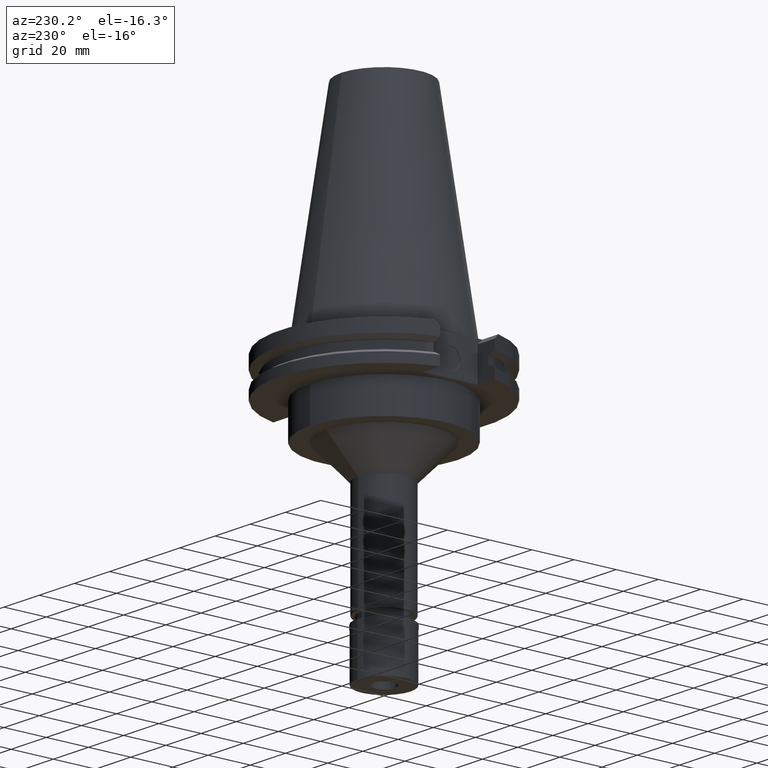
[diagram: clean part render]
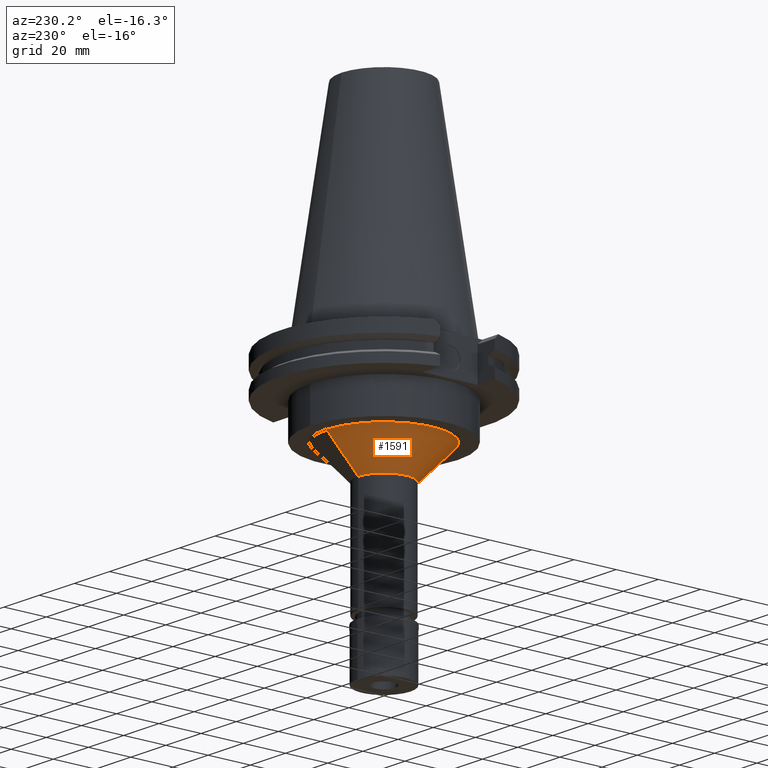
[diagram: same view with one face highlighted and labeled with its STEP entity id]
A machine part, auxiliary view. The second image highlights one B-rep face of the part: STEP entity #1591.
In plain terms, the highlighted conical surface has half-angle 45 deg.
Its self-contained STEP definition (entity closure, byte-faithful):
#105 = DIRECTION ( 'NONE',  ( 0.0000000000000000000, -0.7071067811865474617, -0.7071067811865474617 ) ) ;
#113 = VERTEX_POINT ( 'NONE', #3281 ) ;
#233 = LINE ( 'NONE', #792, #2049 ) ;
#273 = DIRECTION ( 'NONE',  ( 0.0000000000000000000, 0.0000000000000000000, -1.000000000000000000 ) ) ;
#319 = DIRECTION ( 'NONE',  ( 0.0000000000000000000, 0.0000000000000000000, -1.000000000000000000 ) ) ;
#346 = EDGE_CURVE ( 'NONE', #485, #113, #1841, .T. ) ;
#433 = FACE_OUTER_BOUND ( 'NONE', #2490, .T. ) ;
#485 = VERTEX_POINT ( 'NONE', #2161 ) ;
#538 = DIRECTION ( 'NONE',  ( 0.0000000000000000000, -1.000000000000000000, 0.0000000000000000000 ) ) ;
#745 = AXIS2_PLACEMENT_3D ( 'NONE', #3020, #2986, #1258 ) ;
#778 = CARTESIAN_POINT ( 'NONE',  ( 0.0000000000000000000, 0.0000000000000000000, -35.00000000000000000 ) ) ;
#792 = CARTESIAN_POINT ( 'NONE',  ( 0.0000000000000000000, -27.25000000000000000, -35.00000000000000000 ) ) ;
#845 = CARTESIAN_POINT ( 'NONE',  ( 0.0000000000000000000, 0.0000000000000000000, -50.00000000000000000 ) ) ;
#898 = ORIENTED_EDGE ( 'NONE', *, *, #346, .F. ) ;
#1122 = AXIS2_PLACEMENT_3D ( 'NONE', #778, #273, #538 ) ;
#1258 = DIRECTION ( 'NONE',  ( 0.0000000000000000000, 1.000000000000000000, 0.0000000000000000000 ) ) ;
#1342 = EDGE_CURVE ( 'NONE', #2401, #485, #233, .T. ) ;
#1348 = DIRECTION ( 'NONE',  ( 0.0000000000000000000, -1.000000000000000000, 0.0000000000000000000 ) ) ;
#1591 = ADVANCED_FACE ( 'NONE', ( #433 ), #1604, .T. ) ;
#1604 = CONICAL_SURFACE ( 'NONE', #745, 19.75000000000000000, 0.7853981633972997312 ) ;
#1841 = CIRCLE ( 'NONE', #2330, 12.25000000000000000 ) ;
#1920 = CIRCLE ( 'NONE', #1122, 27.25000000000000000 ) ;
#2049 = VECTOR ( 'NONE', #3268, 1000.000000000000114 ) ;
#2161 = CARTESIAN_POINT ( 'NONE',  ( 0.0000000000000000000, -12.25000000000000000, -50.00000000000000000 ) ) ;
#2283 = VERTEX_POINT ( 'NONE', #3303 ) ;
#2330 = AXIS2_PLACEMENT_3D ( 'NONE', #845, #319, #1348 ) ;
#2401 = VERTEX_POINT ( 'NONE', #2556 ) ;
#2434 = EDGE_CURVE ( 'NONE', #2401, #2283, #1920, .T. ) ;
#2490 = EDGE_LOOP ( 'NONE', ( #898, #2507, #3192, #2814 ) ) ;
#2507 = ORIENTED_EDGE ( 'NONE', *, *, #1342, .F. ) ;
#2556 = CARTESIAN_POINT ( 'NONE',  ( 0.0000000000000000000, -27.25000000000000000, -35.00000000000000000 ) ) ;
#2665 = LINE ( 'NONE', #3227, #2923 ) ;
#2798 = EDGE_CURVE ( 'NONE', #2283, #113, #2665, .T. ) ;
#2814 = ORIENTED_EDGE ( 'NONE', *, *, #2798, .T. ) ;
#2923 = VECTOR ( 'NONE', #105, 1000.000000000000114 ) ;
#2986 = DIRECTION ( 'NONE',  ( 0.0000000000000000000, 0.0000000000000000000, 1.000000000000000000 ) ) ;
#3020 = CARTESIAN_POINT ( 'NONE',  ( 0.0000000000000000000, 0.0000000000000000000, -42.50000000000000000 ) ) ;
#3192 = ORIENTED_EDGE ( 'NONE', *, *, #2434, .T. ) ;
#3227 = CARTESIAN_POINT ( 'NONE',  ( 0.0000000000000000000, 27.25000000000000000, -35.00000000000000000 ) ) ;
#3268 = DIRECTION ( 'NONE',  ( 0.0000000000000000000, 0.7071067811865474617, -0.7071067811865474617 ) ) ;
#3281 = CARTESIAN_POINT ( 'NONE',  ( 0.0000000000000000000, 12.25000000000000000, -50.00000000000000000 ) ) ;
#3303 = CARTESIAN_POINT ( 'NONE',  ( 0.0000000000000000000, 27.25000000000000000, -35.00000000000000000 ) ) ;